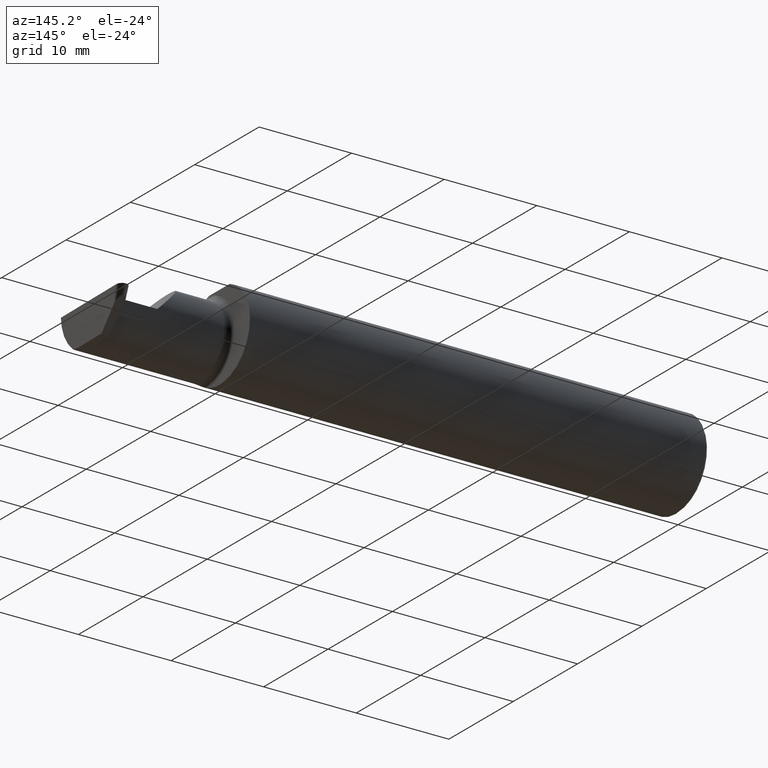
[diagram: clean part render]
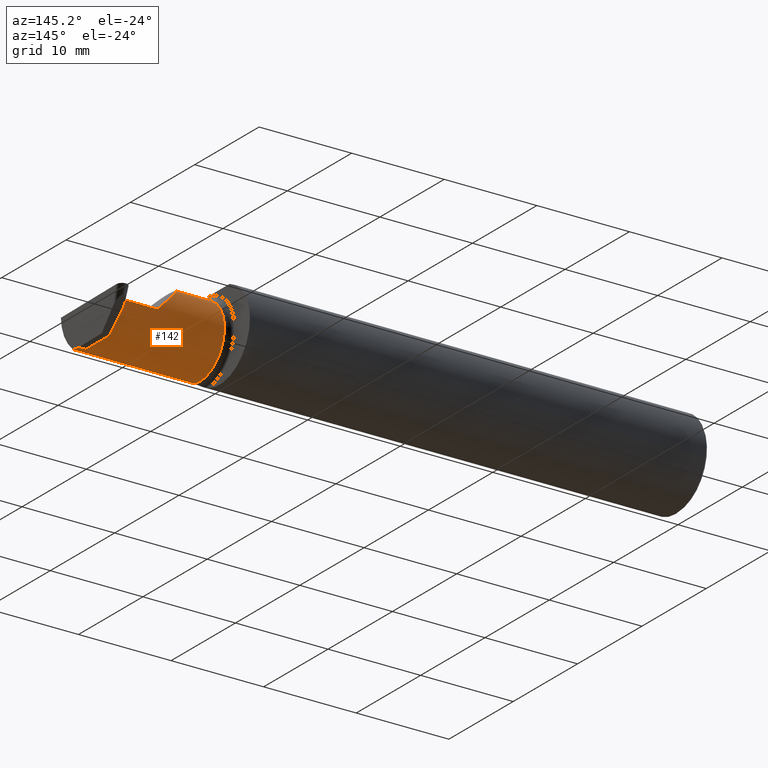
[diagram: same view with one face highlighted and labeled with its STEP entity id]
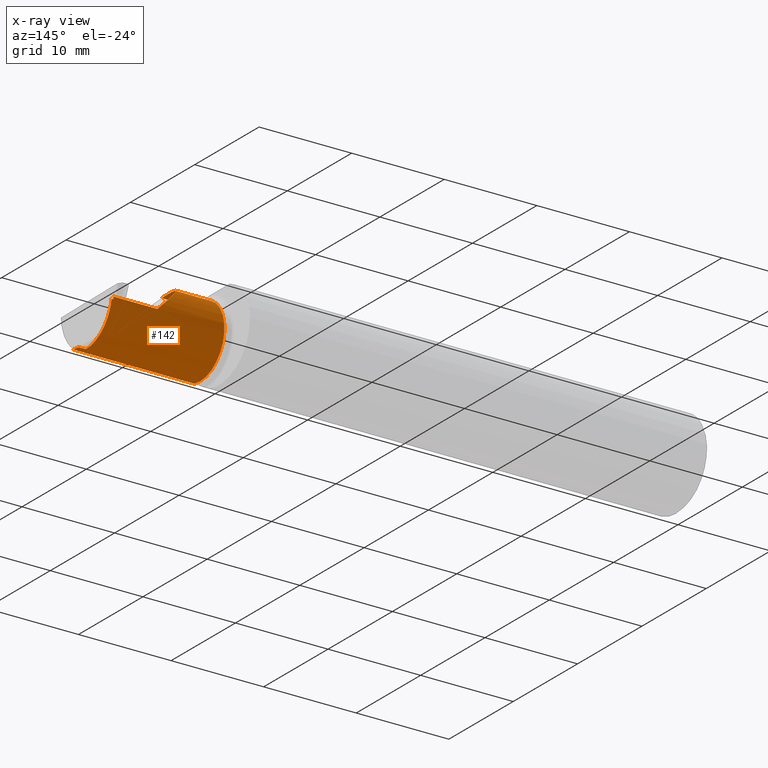
[diagram: x-ray of the same camera — body ghosted, the highlighted face saturated]
A machine part, auxiliary view. The second image highlights one B-rep face of the part: STEP entity #142.
The next image is the same camera in x-ray: the body ghosted, the highlighted face saturated — about 0% of this face is hidden behind the body in this view.
In plain terms, the highlighted cylindrical surface (partial cylindrical patch) has radius 3.81 mm, axis along (-1, -0, -0).
Its self-contained STEP definition (entity closure, byte-faithful):
#7 = CARTESIAN_POINT ( 'NONE',  ( 2.260000000000000231, 0.06665000000000001479, 6.735557395310446214E-17 ) ) ;
#14 = DIRECTION ( 'NONE',  ( 0.000000000000000000, -1.000000000000000000, 0.000000000000000000 ) ) ;
#30 = VERTEX_POINT ( 'NONE', #363 ) ;
#36 = CARTESIAN_POINT ( 'NONE',  ( 2.460115337567889249, -0.08334999999999999354, -0.1500000000000000500 ) ) ;
#39 = DIRECTION ( 'NONE',  ( -1.000000000000000000, -3.394713289407038742E-17, -0.000000000000000000 ) ) ;
#43 = CARTESIAN_POINT ( 'NONE',  ( 2.460115337567889249, -0.08334999999999999354, -0.1500000000000000500 ) ) ;
#46 = EDGE_CURVE ( 'NONE', #264, #173, #151, .T. ) ;
#54 = CARTESIAN_POINT ( 'NONE',  ( 2.447424076630286827, 0.06652820251299108867, -0.003487823687207497643 ) ) ;
#57 = CARTESIAN_POINT ( 'NONE',  ( 2.113883229301068312, -0.1172600179964003175, 0.1461167706989304760 ) ) ;
#65 = CARTESIAN_POINT ( 'NONE',  ( 2.090221225029926355, -0.01530148607434139371, 0.1697787749700724880 ) ) ;
#69 = EDGE_CURVE ( 'NONE', #126, #267, #366, .T. ) ;
#73 = ORIENTED_EDGE ( 'NONE', *, *, #602, .F. ) ;
#82 = CARTESIAN_POINT ( 'NONE',  ( 1.974999999999999867, -0.1172600179964006090, -0.1461167706989303927 ) ) ;
#85 = ORIENTED_EDGE ( 'NONE', *, *, #158, .T. ) ;
#89 = CIRCLE ( 'NONE', #144, 0.1500000000000000500 ) ;
#91 = CARTESIAN_POINT ( 'NONE',  ( 2.113883229301068312, -0.1172600179964003175, 0.1461167706989304760 ) ) ;
#95 = LINE ( 'NONE', #303, #511 ) ;
#102 = DIRECTION ( 'NONE',  ( 1.000000000000000000, 3.394713289407038742E-17, 0.000000000000000000 ) ) ;
#105 = CARTESIAN_POINT ( 'NONE',  ( 2.454977397848501219, 0.06628460753894979685, -0.01046347106162132459 ) ) ;
#118 = CARTESIAN_POINT ( 'NONE',  ( 2.447180481656269446, 0.06628460753897341684, -0.01046347106162249727 ) ) ;
#123 = ORIENTED_EDGE ( 'NONE', *, *, #46, .F. ) ;
#126 = VERTEX_POINT ( 'NONE', #118 ) ;
#142 = ADVANCED_FACE ( 'NONE', ( #562 ), #265, .T. ) ;
#144 = AXIS2_PLACEMENT_3D ( 'NONE', #565, #617, #289 ) ;
#145 = CARTESIAN_POINT ( 'NONE',  ( 2.733184360054361939, -0.08335000000000006293, -0.1500000000000000500 ) ) ;
#147 = CARTESIAN_POINT ( 'NONE',  ( 2.490040979592266890, -0.1172600179964006090, -0.1461167706989303927 ) ) ;
#149 = LINE ( 'NONE', #306, #571 ) ;
#151 =( BOUNDED_CURVE ( )  B_SPLINE_CURVE ( 3, ( #43, #209, #603, #105 ),
 .UNSPECIFIED., .F., .F. ) 
 B_SPLINE_CURVE_WITH_KNOTS ( ( 4, 4 ),
 ( 3.176499238629678867, 4.677482395344774169 ),
 .UNSPECIFIED. ) 
 CURVE ( )  GEOMETRIC_REPRESENTATION_ITEM ( )  RATIONAL_B_SPLINE_CURVE ( ( 1.000000000000000000, 0.8209024677461199682, 0.8209024677461199682, 1.000000000000000000 ) ) 
 REPRESENTATION_ITEM ( '' )  );
#153 = CARTESIAN_POINT ( 'NONE',  ( 2.213980000000000281, -0.1172600179964006090, -0.1461167706989303927 ) ) ;
#156 = CARTESIAN_POINT ( 'NONE',  ( 2.490145048687840479, -0.1061291577212409298, -0.1486999626928446616 ) ) ;
#158 = EDGE_CURVE ( 'NONE', #272, #635, #323, .T. ) ;
#173 = VERTEX_POINT ( 'NONE', #494 ) ;
#194 = LINE ( 'NONE', #153, #342 ) ;
#195 = EDGE_LOOP ( 'NONE', ( #462, #73, #299, #85, #434, #204, #351, #123, #243, #226 ) ) ;
#201 = CARTESIAN_POINT ( 'NONE',  ( 1.949999999999999956, 0.06665000000000001479, 6.735557395310446214E-17 ) ) ;
#204 = ORIENTED_EDGE ( 'NONE', *, *, #69, .F. ) ;
#209 = CARTESIAN_POINT ( 'NONE',  ( 2.460012367653796606, -0.0002709026822648648324, -0.1500000000000000500 ) ) ;
#218 = CARTESIAN_POINT ( 'NONE',  ( 2.155331797197863608, 0.06665000000000002867, 0.1046682028021359151 ) ) ;
#226 = ORIENTED_EDGE ( 'NONE', *, *, #304, .F. ) ;
#243 = ORIENTED_EDGE ( 'NONE', *, *, #566, .F. ) ;
#261 = CARTESIAN_POINT ( 'NONE',  ( 2.447545874117295739, 0.06664999999999991764, 0.000000000000000000 ) ) ;
#264 = VERTEX_POINT ( 'NONE', #36 ) ;
#265 = CYLINDRICAL_SURFACE ( 'NONE', #443, 0.1500000000000000500 ) ;
#267 = VERTEX_POINT ( 'NONE', #364 ) ;
#272 = VERTEX_POINT ( 'NONE', #91 ) ;
#280 = VERTEX_POINT ( 'NONE', #147 ) ;
#288 = EDGE_CURVE ( 'NONE', #635, #267, #648, .T. ) ;
#289 = DIRECTION ( 'NONE',  ( 0.000000000000000000, -1.000000000000000000, 0.000000000000000000 ) ) ;
#299 = ORIENTED_EDGE ( 'NONE', *, *, #317, .T. ) ;
#300 = CARTESIAN_POINT ( 'NONE',  ( 2.490297801769516539, -0.09477667630339428606, -0.1500000000000000222 ) ) ;
#303 = CARTESIAN_POINT ( 'NONE',  ( 1.949999999999998623, 0.06628460753896384117, -0.01046347106175933399 ) ) ;
#304 = EDGE_CURVE ( 'NONE', #280, #422, #420, .T. ) ;
#306 = CARTESIAN_POINT ( 'NONE',  ( 2.213980000000000281, -0.1172600179964006090, 0.1461167706989303927 ) ) ;
#313 = VECTOR ( 'NONE', #532, 39.37007874015748143 ) ;
#317 = EDGE_CURVE ( 'NONE', #30, #272, #149, .T. ) ;
#323 =( BOUNDED_CURVE ( )  B_SPLINE_CURVE ( 3, ( #57, #65, #218, #375 ),
 .UNSPECIFIED., .F., .F. ) 
 B_SPLINE_CURVE_WITH_KNOTS ( ( 4, 4 ),
 ( 6.055147272130144920, 7.853981633974482790 ),
 .UNSPECIFIED. ) 
 CURVE ( )  GEOMETRIC_REPRESENTATION_ITEM ( )  RATIONAL_B_SPLINE_CURVE ( ( 1.000000000000000000, 0.7480442670255273985, 0.7480442670255273985, 1.000000000000000000 ) ) 
 REPRESENTATION_ITEM ( '' )  );
#324 = CARTESIAN_POINT ( 'NONE',  ( 2.447302279143278358, 0.06640640502598225969, -0.006975647374414995286 ) ) ;
#342 = VECTOR ( 'NONE', #638, 39.37007874015748143 ) ;
#351 = ORIENTED_EDGE ( 'NONE', *, *, #581, .F. ) ;
#363 = CARTESIAN_POINT ( 'NONE',  ( 1.974999999999999867, -0.1172600179964006506, 0.1461167706989304205 ) ) ;
#364 = CARTESIAN_POINT ( 'NONE',  ( 2.447545874117295739, 0.06664999999999991764, 0.000000000000000000 ) ) ;
#366 = B_SPLINE_CURVE_WITH_KNOTS ( 'NONE', 3,
 ( #374, #324, #54, #261 ),
 .UNSPECIFIED., .F., .F.,
 ( 4, 4 ),
 ( 0.000000000000000000, 1.000000000000000000 ),
 .UNSPECIFIED. ) ;
#368 = CARTESIAN_POINT ( 'NONE',  ( 2.490497255146305822, -0.08335000000000006293, -0.1500000000000000500 ) ) ;
#374 = CARTESIAN_POINT ( 'NONE',  ( 2.447180481656269446, 0.06628460753897341684, -0.01046347106162249727 ) ) ;
#375 = CARTESIAN_POINT ( 'NONE',  ( 2.260000000000000231, 0.06665000000000001479, 6.735557395310446214E-17 ) ) ;
#420 =( BOUNDED_CURVE ( )  B_SPLINE_CURVE ( 3, ( #471, #156, #300, #368 ),
 .UNSPECIFIED., .F., .F. ) 
 B_SPLINE_CURVE_WITH_KNOTS ( ( 4, 4 ),
 ( 0.2354267821558766460, 0.4634648172053196791 ),
 .UNSPECIFIED. ) 
 CURVE ( )  GEOMETRIC_REPRESENTATION_ITEM ( )  RATIONAL_B_SPLINE_CURVE ( ( 1.000000000000000000, 0.9956712472009929815, 0.9956712472009929815, 1.000000000000000000 ) ) 
 REPRESENTATION_ITEM ( '' )  );
#422 = VERTEX_POINT ( 'NONE', #622 ) ;
#434 = ORIENTED_EDGE ( 'NONE', *, *, #288, .T. ) ;
#443 = AXIS2_PLACEMENT_3D ( 'NONE', #548, #505, #14 ) ;
#462 = ORIENTED_EDGE ( 'NONE', *, *, #560, .T. ) ;
#471 = CARTESIAN_POINT ( 'NONE',  ( 2.490040979592266890, -0.1172600179964006090, -0.1461167706989303927 ) ) ;
#475 = DIRECTION ( 'NONE',  ( 1.000000000000000000, 3.394713289407038742E-17, 0.000000000000000000 ) ) ;
#494 = CARTESIAN_POINT ( 'NONE',  ( 2.454977397848501219, 0.06628460753894979685, -0.01046347106162132459 ) ) ;
#505 = DIRECTION ( 'NONE',  ( -1.000000000000000000, -3.394713289407038742E-17, -0.000000000000000000 ) ) ;
#511 = VECTOR ( 'NONE', #39, 39.37007874015748143 ) ;
#532 = DIRECTION ( 'NONE',  ( -1.000000000000000000, -0.000000000000000000, -0.000000000000000000 ) ) ;
#548 = CARTESIAN_POINT ( 'NONE',  ( 1.949999999999999956, -0.08335000000000000742, 0.000000000000000000 ) ) ;
#560 = EDGE_CURVE ( 'NONE', #280, #598, #194, .T. ) ;
#562 = FACE_OUTER_BOUND ( 'NONE', #195, .T. ) ;
#565 = CARTESIAN_POINT ( 'NONE',  ( 1.974999999999999867, -0.08335000000000000742, 0.000000000000000000 ) ) ;
#566 = EDGE_CURVE ( 'NONE', #422, #264, #599, .T. ) ;
#571 = VECTOR ( 'NONE', #475, 39.37007874015748143 ) ;
#581 = EDGE_CURVE ( 'NONE', #173, #126, #95, .T. ) ;
#598 = VERTEX_POINT ( 'NONE', #82 ) ;
#599 = LINE ( 'NONE', #145, #313 ) ;
#602 = EDGE_CURVE ( 'NONE', #30, #598, #89, .T. ) ;
#603 = CARTESIAN_POINT ( 'NONE',  ( 2.457926070388992468, 0.06048930266824081858, -0.09334019187383281457 ) ) ;
#617 = DIRECTION ( 'NONE',  ( -1.000000000000000000, -3.394713289407038742E-17, -0.000000000000000000 ) ) ;
#622 = CARTESIAN_POINT ( 'NONE',  ( 2.490497255146305822, -0.08335000000000006293, -0.1500000000000000500 ) ) ;
#635 = VERTEX_POINT ( 'NONE', #7 ) ;
#638 = DIRECTION ( 'NONE',  ( -1.000000000000000000, -3.394713289407038742E-17, -0.000000000000000000 ) ) ;
#648 = LINE ( 'NONE', #201, #705 ) ;
#705 = VECTOR ( 'NONE', #102, 39.37007874015748143 ) ;